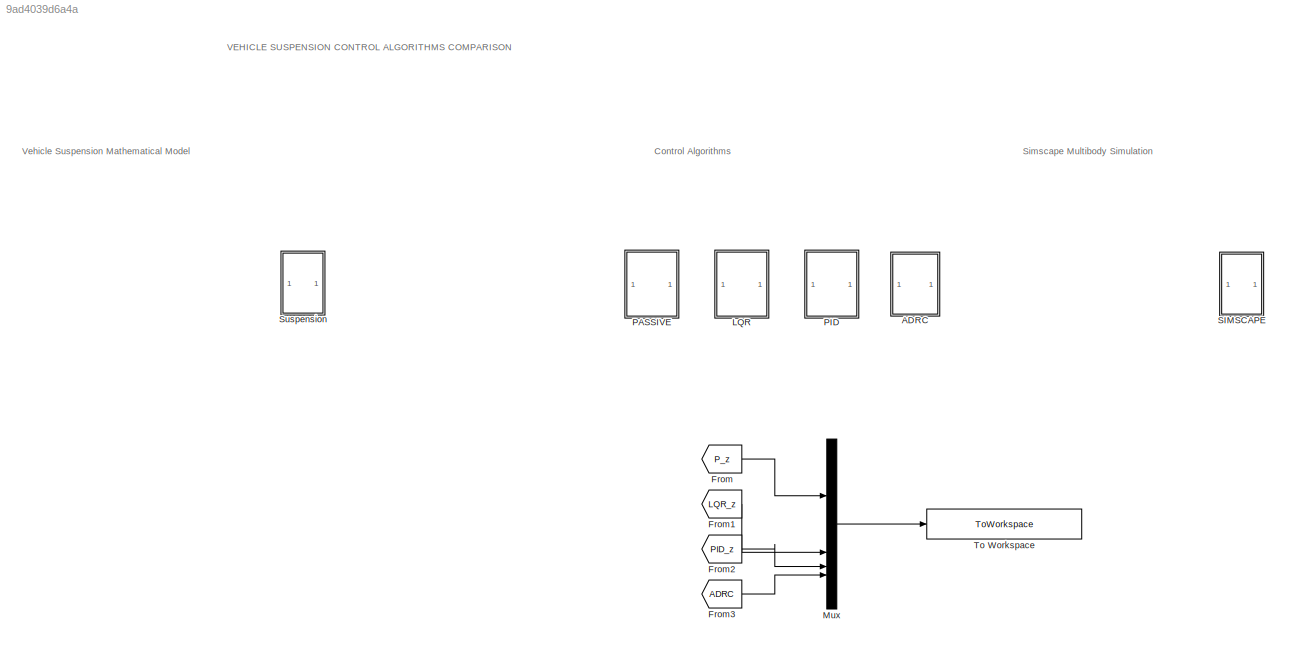
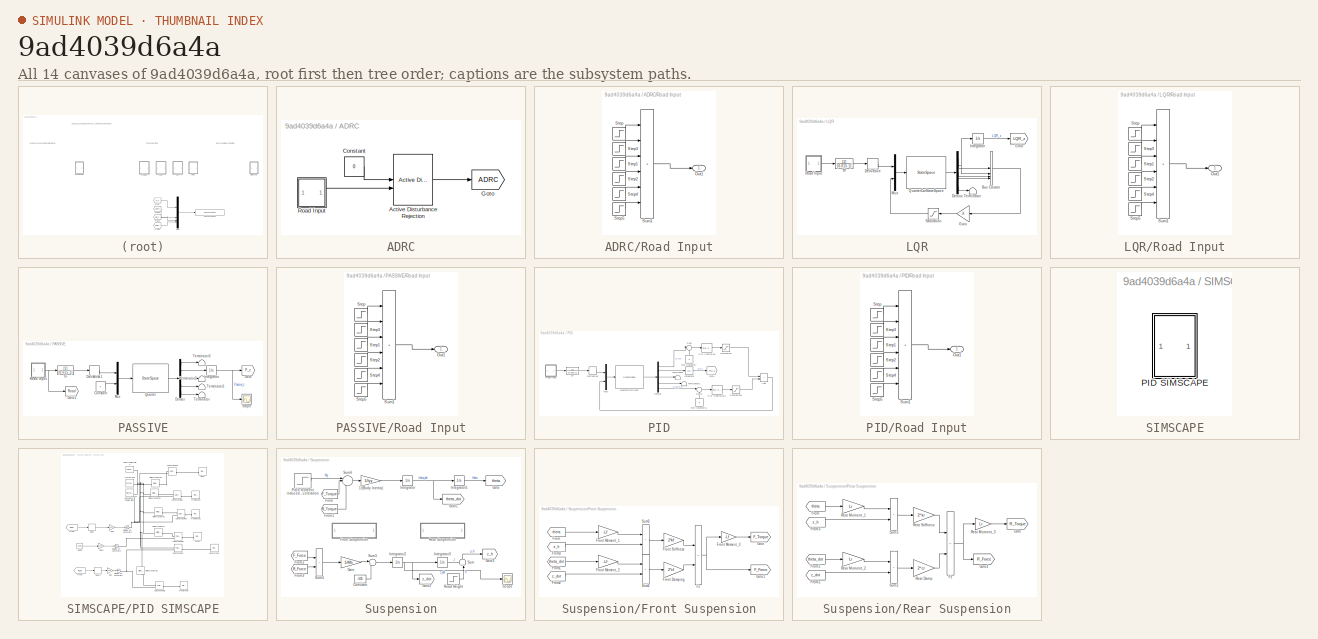
[diagram: thumbnail index - all 14 canvases of the model, root first then tree order]
MODEL slx_9ad4039d6a4a
KIND model
CONFIG AbsTol = auto
CONFIG EnableMultiTasking = off
CONFIG FixedStep = 1e-3
CONFIG MaxStep = auto
CONFIG MinStep = auto
CONFIG RelTol = 1e-3
CONFIG SampleTimeConstraint = Unconstrained
CONFIG SolverName = FixedStepAuto
CONFIG StartTime = 0.0
CONFIG StopTime = 30
WORKSPACE source: mxarray member
WORKSPACE A = [0 -444.444444444 0 2418.60465116 1 -26.3931623932 0 143.627906977 0 0 0 -9302.3255814 ... (16 elements, 4x4)]
WORKSPACE A_eso = [0 0 0 1 0 0 0 1 0]
WORKSPACE B = [0 0 -1 0 0 0.0042735042735 0 -0.0232558139535]
WORKSPACE B_eso_th = [0 333.333333333 0]
WORKSPACE B_eso_y = [0 0.8 0]
WORKSPACE C = [1 0 0 0 -444.444444444 0 1 0 0 -26.3931623932 0 0 ... (20 elements, 5x4)]
WORKSPACE C_eso = [1 0 0]
WORKSPACE D = [0 0 0 0 0 0 0 0 0 0.0042735042735]
WORKSPACE I = 0.003
WORKSPACE Ic_xnl = [0 0 0 0 0.349065850399 0]
WORKSPACE Iyy = 2100
WORKSPACE K = [40277.510375 6943.43713521 -89611.1366666 302.327568335]
WORKSPACE Kd = 5239.23468894
WORKSPACE Kd_2 = 0
WORKSPACE Kd_th = 7.53982236862
WORKSPACE Kd_y = 7.53982236862
WORKSPACE Ki = 3819451.68393
WORKSPACE Ki_2 = 12673.3447819
WORKSPACE Kp = 319533.641021
WORKSPACE Kp_2 = 160
WORKSPACE Kp_th = 14.2122303376
WORKSPACE Kp_y = 14.2122303376
WORKSPACE L = 0.35
WORKSPACE L_eso_th = [56.5486677646 1065.91727532 6697.35576294]
WORKSPACE L_eso_y = [56.5486677646 1065.91727532 6697.35576294]
WORKSPACE Lf = 0.9
WORKSPACE Lr = 1.2
WORKSPACE Mb = 1200
WORKSPACE Q = [10000000000 0 0 0 0 100000000 0 0 0 0 1 0 ... (16 elements, 4x4)]
WORKSPACE R = 1
WORKSPACE T_f = 5
WORKSPACE b_th = 333.333333333
WORKSPACE b_y = 0.8
WORKSPACE bs = 6176
WORKSPACE bus = 0
WORKSPACE cf = 2000
WORKSPACE cr = 2000
WORKSPACE elapsed_time_simulation = 14.1875694
WORKSPACE fc_th = 0.6
WORKSPACE fc_y = 0.6
WORKSPACE g = 9.81
WORKSPACE h = 0.2
WORKSPACE i = 125
WORKSPACE kf = 28000
WORKSPACE kr = 21000
WORKSPACE ks = 104000
WORKSPACE kus = 400000
WORKSPACE m = 1
WORKSPACE model_sim: Simulink.SimulationOutput (value not decoded)
WORKSPACE ms = 234
WORKSPACE mus = 43
WORKSPACE pid: object (value not decoded)
WORKSPACE pid_2: object (value not decoded)
WORKSPACE qcar: object (value not decoded)
WORKSPACE road = 3
WORKSPACE road_profile: timeseries (value not decoded)
WORKSPACE road_surface: timeseries (value not decoded)
WORKSPACE sim_time = [0.01 0.05 0.09 0.13 0.17 0.21 0.25 0.29 0.33 0.37 0.41 0.45 ... (125 elements, 1x125)]
WORKSPACE sprung_mass_a: object (value not decoded)
WORKSPACE sprung_mass_motion: object (value not decoded)
WORKSPACE state_LQR: object (value not decoded)
WORKSPACE state_PID: object (value not decoded)
WORKSPACE state_passive: object (value not decoded)
WORKSPACE wc_th = 3.76991118431
WORKSPACE wc_y = 3.76991118431
WORKSPACE wo_th = 18.8495559215
WORKSPACE wo_y = 18.8495559215
BLOCK [SubSystem] ADRC
BLOCK [Reference] ADRC/Active Disturbance Rejection  REF=slctrlblks/Active Disturbance Rejection Control
  SourceBlock = slctrlblks/Active Disturbance Rejection Control
  SourceType = Active Disturbance Rejection Control (ADRC)
BLOCK [Constant] ADRC/Constant
  Value = 0
BLOCK [Goto] ADRC/Goto
  GotoTag = ADRC
  TagVisibility = global
BLOCK [SubSystem] ADRC/Road Input
BLOCK [Outport] ADRC/Road Input/Out1
BLOCK [Step] ADRC/Road Input/Step
  After = 0.08
  SampleTime = 0
  Time = 5
BLOCK [Step] ADRC/Road Input/Step1
  After = 0.06
  SampleTime = 0
  Time = 10
BLOCK [Step] ADRC/Road Input/Step2
  After = -0.06
  SampleTime = 0
  Time = 10.1
BLOCK [Step] ADRC/Road Input/Step3
  After = -0.08
  SampleTime = 0
  Time = 5.1
BLOCK [Step] ADRC/Road Input/Step4
  After = 0.12
  SampleTime = 0
  Time = 15
BLOCK [Step] ADRC/Road Input/Step5
  After = -0.12
  SampleTime = 0
  Time = 15.1
BLOCK [Sum] ADRC/Road Input/Sum1
  IconShape = rectangular
  Inputs = |++++++
BLOCK [From] From
  GotoTag = P_z
  TagVisibility = global
BLOCK [From] From1
  GotoTag = LQR_z
  TagVisibility = global
BLOCK [From] From2
  GotoTag = PID_z
  TagVisibility = global
BLOCK [From] From3
  GotoTag = ADRC
  TagVisibility = global
BLOCK [SubSystem] LQR
BLOCK [BusCreator] LQR/Bus Creator
  DisplayOption = bar
  InheritFromInputs = on
  Inputs = 4
BLOCK [Demux] LQR/Demux
  Outputs = 5
BLOCK [Derivative] LQR/Derivative
BLOCK [Gain] LQR/Gain
  Gain = -K
  Multiplication = Matrix(K*u)
  NameLocation = top
BLOCK [Goto] LQR/Goto
  GotoTag = LQR_z
  TagVisibility = global
BLOCK [Integrator] LQR/Integrator
BLOCK [Mux] LQR/Mux
  DisplayOption = bar
  Inputs = 2
BLOCK [StateSpace] LQR/QuarterCarStateSpace
  A = A
  B = B
  C = C
  D = D
  InitialCondition = 0
BLOCK [SubSystem] LQR/Road Input
BLOCK [Outport] LQR/Road Input/Out1
BLOCK [Step] LQR/Road Input/Step
  After = 0.08
  SampleTime = 0
  Time = 5
BLOCK [Step] LQR/Road Input/Step1
  After = 0.06
  SampleTime = 0
  Time = 10
BLOCK [Step] LQR/Road Input/Step2
  After = -0.06
  SampleTime = 0
  Time = 10.1
BLOCK [Step] LQR/Road Input/Step3
  After = -0.08
  SampleTime = 0
  Time = 5.1
BLOCK [Step] LQR/Road Input/Step4
  After = 0.12
  SampleTime = 0
  Time = 15
BLOCK [Step] LQR/Road Input/Step5
  After = -0.12
  SampleTime = 0
  Time = 15.1
BLOCK [Sum] LQR/Road Input/Sum1
  IconShape = rectangular
  Inputs = |++++++
BLOCK [Saturate] LQR/Saturation
  LowerLimit = -46730
  NameLocation = top
  UpperLimit = 46730
BLOCK [TransferFcn] LQR/TF
  Denominator = [0.015 1]
BLOCK [Terminator] LQR/Terminator
BLOCK [Mux] Mux
  DisplayOption = bar
BLOCK [SubSystem] PASSIVE
BLOCK [Constant] PASSIVE/Constant
  Value = 0
BLOCK [Demux] PASSIVE/Demux
  Outputs = 5
BLOCK [Derivative] PASSIVE/Derivative1
BLOCK [Goto] PASSIVE/Goto
  GotoTag = P_z
  TagVisibility = global
BLOCK [Goto] PASSIVE/Goto1
  GotoTag = Road
  TagVisibility = global
BLOCK [Integrator] PASSIVE/Integrator
BLOCK [Mux] PASSIVE/Mux
  DisplayOption = bar
  Inputs = 2
BLOCK [StateSpace] PASSIVE/Quarter
  A = A
  B = B
  C = C
  D = D
  InitialCondition = 0
BLOCK [SubSystem] PASSIVE/Road Input
BLOCK [Outport] PASSIVE/Road Input/Out1
BLOCK [Step] PASSIVE/Road Input/Step
  After = 0.08
  SampleTime = 0
  Time = 5
BLOCK [Step] PASSIVE/Road Input/Step1
  After = 0.06
  SampleTime = 0
  Time = 10
BLOCK [Step] PASSIVE/Road Input/Step2
  After = -0.06
  SampleTime = 0
  Time = 10.1
BLOCK [Step] PASSIVE/Road Input/Step3
  After = -0.08
  SampleTime = 0
  Time = 5.1
BLOCK [Step] PASSIVE/Road Input/Step4
  After = 0.12
  SampleTime = 0
  Time = 15
BLOCK [Step] PASSIVE/Road Input/Step5
  After = -0.12
  SampleTime = 0
  Time = 15.1
BLOCK [Sum] PASSIVE/Road Input/Sum1
  IconShape = rectangular
  Inputs = |++++++
BLOCK [Scope] PASSIVE/Scope
  Floating = off
  NumInputPorts = 1
  ScopeSpecificationString = Simulink.scopes.TimeScopeBlockCfg('CurrentConfiguration', extmgr.ConfigurationSet(extmgr.Configuration('Core','General UI',true),extmgr.Configuration('Core','Source UI',true),extmgr.Configuration('Sources','WiredSimulink',true,'DataLoggingVariableName','ScopeData1'),extmgr.Configuration('Visuals','Time Domain',true,'SerializedDisplays',{struct('MinYLimReal','-0.07903','MaxYLimReal','0.19274','YLab...<+1394ch>
BLOCK [TransferFcn] PASSIVE/TF
  Denominator = [0.015 1]
BLOCK [Terminator] PASSIVE/Terminator
BLOCK [Terminator] PASSIVE/Terminator1
BLOCK [Terminator] PASSIVE/Terminator2
BLOCK [Terminator] PASSIVE/Terminator3
BLOCK [SubSystem] PID
BLOCK [Sum] PID/Add
  IconShape = rectangular
BLOCK [Demux] PID/Demux
  Outputs = 5
BLOCK [Derivative] PID/Derivative
BLOCK [Goto] PID/Goto
  GotoTag = PID_z
  TagVisibility = global
BLOCK [Integrator] PID/Integrator
BLOCK [Mux] PID/Mux
  DisplayOption = bar
  Inputs = 2
BLOCK [Reference] PID/PID Controller  REF=slpidlib/PID Controller
  LibrarySourceBlock = simulink/Continuous/PID Controller
  SourceBlock = slpidlib/PID Controller
  SourceType = PID 1dof
BLOCK [Reference] PID/PID Controller1  REF=slpidlib/PID Controller
  LibrarySourceBlock = simulink/Continuous/PID Controller
  SourceBlock = slpidlib/PID Controller
  SourceType = PID 1dof
BLOCK [StateSpace] PID/QuarterCarState
  A = A
  B = B
  C = C
  D = D
  InitialCondition = 0
BLOCK [Constant] PID/Ref trajectory
  NameLocation = right
  Value = 0
BLOCK [Constant] PID/Ref trajectory1
  NameLocation = right
  Value = 0
BLOCK [SubSystem] PID/Road Input
BLOCK [Outport] PID/Road Input/Out1
BLOCK [Step] PID/Road Input/Step
  After = 0.08
  SampleTime = 0
  Time = 5
BLOCK [Step] PID/Road Input/Step1
  After = 0.06
  SampleTime = 0
  Time = 10
BLOCK [Step] PID/Road Input/Step2
  After = -0.06
  SampleTime = 0
  Time = 10.1
BLOCK [Step] PID/Road Input/Step3
  After = -0.08
  SampleTime = 0
  Time = 5.1
BLOCK [Step] PID/Road Input/Step4
  After = 0.12
  SampleTime = 0
  Time = 15
BLOCK [Step] PID/Road Input/Step5
  After = -0.12
  SampleTime = 0
  Time = 15.1
BLOCK [Sum] PID/Road Input/Sum1
  IconShape = rectangular
  Inputs = |++++++
BLOCK [Saturate] PID/Saturation
  LowerLimit = -46730
  UpperLimit = 46730
BLOCK [Saturate] PID/Saturation1
  LowerLimit = -46730
  UpperLimit = 46730
BLOCK [Sum] PID/Sum
  Inputs = |-+
BLOCK [Sum] PID/Sum1
  Inputs = |-+
BLOCK [TransferFcn] PID/TF
  Denominator = [0.015 1]
BLOCK [Terminator] PID/Terminator
BLOCK [Terminator] PID/Terminator1
BLOCK [SubSystem] SIMSCAPE
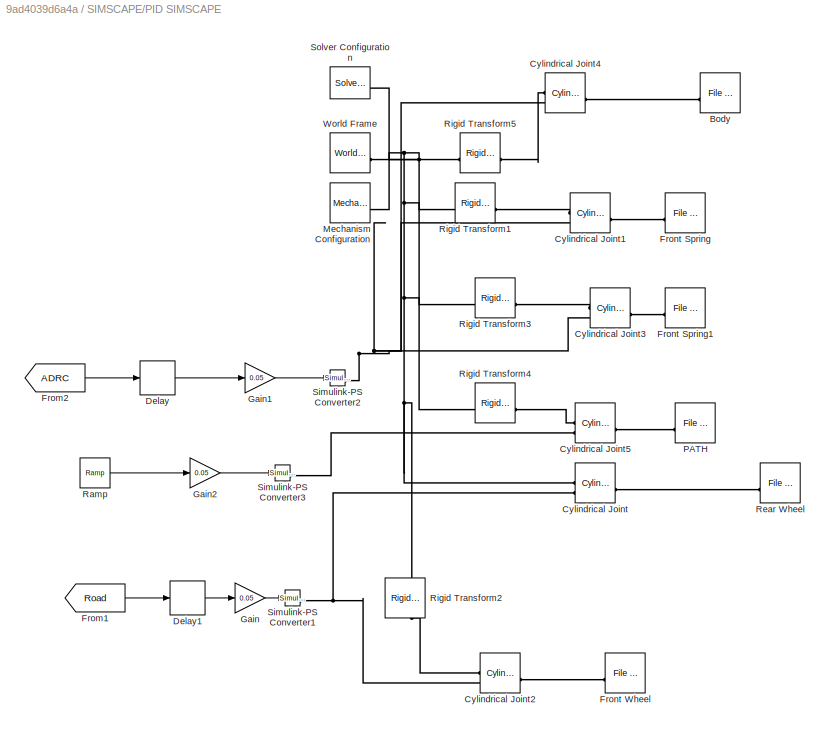
BLOCK [SubSystem] SIMSCAPE/PID SIMSCAPE
BLOCK [Reference] SIMSCAPE/PID SIMSCAPE/Body  REF=sm_lib/Body Elements/File Solid
  NameLocation = top
  SourceBlock = sm_lib/Body Elements/File Solid
  SourceType = File Solid
BLOCK [Reference] SIMSCAPE/PID SIMSCAPE/Cylindrical Joint  REF=sm_lib/Joints/Cylindrical
Joint
  SourceBlock = sm_lib/Joints/Cylindrical\nJoint
  SourceType = Cylindrical\nJoint
BLOCK [Reference] SIMSCAPE/PID SIMSCAPE/Cylindrical Joint1  REF=sm_lib/Joints/Cylindrical
Joint
  SourceBlock = sm_lib/Joints/Cylindrical\nJoint
  SourceType = Cylindrical\nJoint
BLOCK [Reference] SIMSCAPE/PID SIMSCAPE/Cylindrical Joint2  REF=sm_lib/Joints/Cylindrical
Joint
  SourceBlock = sm_lib/Joints/Cylindrical\nJoint
  SourceType = Cylindrical\nJoint
BLOCK [Reference] SIMSCAPE/PID SIMSCAPE/Cylindrical Joint3  REF=sm_lib/Joints/Cylindrical
Joint
  SourceBlock = sm_lib/Joints/Cylindrical\nJoint
  SourceType = Cylindrical\nJoint
BLOCK [Reference] SIMSCAPE/PID SIMSCAPE/Cylindrical Joint4  REF=sm_lib/Joints/Cylindrical
Joint
  SourceBlock = sm_lib/Joints/Cylindrical\nJoint
  SourceType = Cylindrical\nJoint
BLOCK [Reference] SIMSCAPE/PID SIMSCAPE/Cylindrical Joint5  REF=sm_lib/Joints/Cylindrical
Joint
  SourceBlock = sm_lib/Joints/Cylindrical\nJoint
  SourceType = Cylindrical\nJoint
BLOCK [Delay] SIMSCAPE/PID SIMSCAPE/Delay
  InputPortMap = u0
BLOCK [Delay] SIMSCAPE/PID SIMSCAPE/Delay1
  InputPortMap = u0
BLOCK [From] SIMSCAPE/PID SIMSCAPE/From1
  GotoTag = Road
  TagVisibility = global
BLOCK [From] SIMSCAPE/PID SIMSCAPE/From2
  GotoTag = ADRC
  TagVisibility = global
BLOCK [Reference] SIMSCAPE/PID SIMSCAPE/Front Spring  REF=sm_lib/Body Elements/File Solid
  NameLocation = top
  SourceBlock = sm_lib/Body Elements/File Solid
  SourceType = File Solid
BLOCK [Reference] SIMSCAPE/PID SIMSCAPE/Front Spring1  REF=sm_lib/Body Elements/File Solid
  NameLocation = top
  SourceBlock = sm_lib/Body Elements/File Solid
  SourceType = File Solid
BLOCK [Reference] SIMSCAPE/PID SIMSCAPE/Front Wheel  REF=sm_lib/Body Elements/File Solid
  NameLocation = top
  SourceBlock = sm_lib/Body Elements/File Solid
  SourceType = File Solid
BLOCK [Gain] SIMSCAPE/PID SIMSCAPE/Gain
  Gain = 0.05
BLOCK [Gain] SIMSCAPE/PID SIMSCAPE/Gain1
  Gain = 0.05
BLOCK [Gain] SIMSCAPE/PID SIMSCAPE/Gain2
  Gain = 0.05
BLOCK [Reference] SIMSCAPE/PID SIMSCAPE/Mechanism Configuration  REF=sm_lib/Utilities/Mechanism
Configuration
  SourceBlock = sm_lib/Utilities/Mechanism\nConfiguration
  SourceType = Mechanism\nConfiguration
BLOCK [Reference] SIMSCAPE/PID SIMSCAPE/PATH  REF=sm_lib/Body Elements/File Solid
  NameLocation = top
  SourceBlock = sm_lib/Body Elements/File Solid
  SourceType = File Solid
BLOCK [Reference] SIMSCAPE/PID SIMSCAPE/Ramp  REF=simulink/Sources/Ramp
  SourceBlock = simulink/Sources/Ramp
  SourceType = Ramp
BLOCK [Reference] SIMSCAPE/PID SIMSCAPE/Rear Wheel  REF=sm_lib/Body Elements/File Solid
  NameLocation = top
  SourceBlock = sm_lib/Body Elements/File Solid
  SourceType = File Solid
BLOCK [Reference] SIMSCAPE/PID SIMSCAPE/Rigid Transform1  REF=sm_lib/Frames and
Transforms/Rigid
Transform
  SourceBlock = sm_lib/Frames and\nTransforms/Rigid\nTransform
  SourceType = Rigid\nTransform
BLOCK [Reference] SIMSCAPE/PID SIMSCAPE/Rigid Transform2  REF=sm_lib/Frames and
Transforms/Rigid
Transform
  NameLocation = left
  SourceBlock = sm_lib/Frames and\nTransforms/Rigid\nTransform
  SourceType = Rigid\nTransform
BLOCK [Reference] SIMSCAPE/PID SIMSCAPE/Rigid Transform3  REF=sm_lib/Frames and
Transforms/Rigid
Transform
  SourceBlock = sm_lib/Frames and\nTransforms/Rigid\nTransform
  SourceType = Rigid\nTransform
BLOCK [Reference] SIMSCAPE/PID SIMSCAPE/Rigid Transform4  REF=sm_lib/Frames and
Transforms/Rigid
Transform
  SourceBlock = sm_lib/Frames and\nTransforms/Rigid\nTransform
  SourceType = Rigid\nTransform
BLOCK [Reference] SIMSCAPE/PID SIMSCAPE/Rigid Transform5  REF=sm_lib/Frames and
Transforms/Rigid
Transform
  SourceBlock = sm_lib/Frames and\nTransforms/Rigid\nTransform
  SourceType = Rigid\nTransform
BLOCK [Reference] SIMSCAPE/PID SIMSCAPE/Simulink-PS Converter1  REF=nesl_utility/Simulink-PS
Converter
  SourceBlock = nesl_utility/Simulink-PS\nConverter
  SourceType = Simulink-PS\nConverter
BLOCK [Reference] SIMSCAPE/PID SIMSCAPE/Simulink-PS Converter2  REF=nesl_utility/Simulink-PS
Converter
  SourceBlock = nesl_utility/Simulink-PS\nConverter
  SourceType = Simulink-PS\nConverter
BLOCK [Reference] SIMSCAPE/PID SIMSCAPE/Simulink-PS Converter3  REF=nesl_utility/Simulink-PS
Converter
  SourceBlock = nesl_utility/Simulink-PS\nConverter
  SourceType = Simulink-PS\nConverter
BLOCK [Reference] SIMSCAPE/PID SIMSCAPE/Solver Configuration  REF=nesl_utility/Solver
Configuration
  SourceBlock = nesl_utility/Solver\nConfiguration
  SourceType = Solver\nConfiguration
BLOCK [Reference] SIMSCAPE/PID SIMSCAPE/World Frame  REF=sm_lib/Frames and
Transforms/World Frame
  SourceBlock = sm_lib/Frames and\nTransforms/World Frame
  SourceType = World Frame
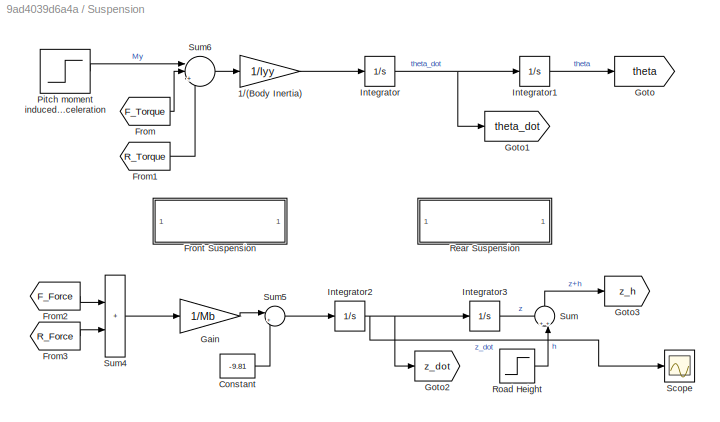
BLOCK [SubSystem] Suspension
BLOCK [Gain] Suspension/1//(Body Inertia)
  Gain = 1/Iyy
  OutDataTypeStr = Inherit: Same as input
  ParamDataTypeStr = Inherit: Same as input
  SaturateOnIntegerOverflow = on
BLOCK [Constant] Suspension/Constant
  Value = -9.81
BLOCK [From] Suspension/From
  GotoTag = F_Torque
  TagVisibility = global
BLOCK [From] Suspension/From1
  GotoTag = R_Torque
  TagVisibility = global
BLOCK [From] Suspension/From2
  GotoTag = F_Force
  TagVisibility = global
BLOCK [From] Suspension/From3
  GotoTag = R_Force
  TagVisibility = global
BLOCK [SubSystem] Suspension/Front Suspension
BLOCK [From] Suspension/Front Suspension/From
  GotoTag = theta
  TagVisibility = global
BLOCK [From] Suspension/Front Suspension/From1
  GotoTag = theta_dot
  TagVisibility = global
BLOCK [From] Suspension/Front Suspension/From2
  GotoTag = z_dot
  TagVisibility = global
BLOCK [From] Suspension/Front Suspension/From3
  GotoTag = z_h
  TagVisibility = global
BLOCK [Gain] Suspension/Front Suspension/Front Damping
  Gain = 2*cf
  OutDataTypeStr = Inherit: Same as input
  ParamDataTypeStr = Inherit: Same as input
  SaturateOnIntegerOverflow = on
BLOCK [Gain] Suspension/Front Suspension/Front Moment_1
  Gain = -Lf
  OutDataTypeStr = Inherit: Same as input
  ParamDataTypeStr = Inherit: Same as input
  SaturateOnIntegerOverflow = on
BLOCK [Gain] Suspension/Front Suspension/Front Moment_2
  Gain = -Lf
  OutDataTypeStr = Inherit: Same as input
  ParamDataTypeStr = Inherit: Same as input
  SaturateOnIntegerOverflow = on
BLOCK [Gain] Suspension/Front Suspension/Front Moment_3
  Gain = -Lf
  OutDataTypeStr = Inherit: Same as input
  ParamDataTypeStr = Inherit: Same as input
  SaturateOnIntegerOverflow = on
BLOCK [Gain] Suspension/Front Suspension/Front Stiffness
  Gain = 2*kf
  OutDataTypeStr = Inherit: Same as input
  ParamDataTypeStr = Inherit: Same as input
  SaturateOnIntegerOverflow = on
BLOCK [Sum] Suspension/Front Suspension/Fz
  IconShape = rectangular
  InputSameDT = on
  Inputs = --
  OutDataTypeStr = Inherit: Same as first input
  SaturateOnIntegerOverflow = on
BLOCK [Goto] Suspension/Front Suspension/Goto
  GotoTag = F_Torque
  TagVisibility = global
BLOCK [Goto] Suspension/Front Suspension/Goto1
  GotoTag = F_Force
  TagVisibility = global
BLOCK [Sum] Suspension/Front Suspension/Sum2
  IconShape = rectangular
  InputSameDT = on
  OutDataTypeStr = Inherit: Same as first input
  SaturateOnIntegerOverflow = on
BLOCK [Sum] Suspension/Front Suspension/Sum3
  IconShape = rectangular
  InputSameDT = on
  OutDataTypeStr = Inherit: Same as first input
  SaturateOnIntegerOverflow = on
BLOCK [Gain] Suspension/Gain
  Gain = 1/Mb
  OutDataTypeStr = Inherit: Same as input
  ParamDataTypeStr = Inherit: Same as input
  SaturateOnIntegerOverflow = on
BLOCK [Goto] Suspension/Goto
  GotoTag = theta
  TagVisibility = global
BLOCK [Goto] Suspension/Goto1
  GotoTag = theta_dot
  TagVisibility = global
BLOCK [Goto] Suspension/Goto2
  GotoTag = z_dot
  TagVisibility = global
BLOCK [Goto] Suspension/Goto3
  GotoTag = z_h
  TagVisibility = global
BLOCK [Integrator] Suspension/Integrator
BLOCK [Integrator] Suspension/Integrator1
BLOCK [Integrator] Suspension/Integrator2
BLOCK [Integrator] Suspension/Integrator3
  InitialCondition = -0.12
BLOCK [Step] Suspension/Pitch moment induced by vehicle acceleration
  After = 100
  SampleTime = 0
  Time = 3
BLOCK [SubSystem] Suspension/Rear Suspension
BLOCK [From] Suspension/Rear Suspension/From
  GotoTag = theta
  TagVisibility = global
BLOCK [From] Suspension/Rear Suspension/From1
  GotoTag = theta_dot
  TagVisibility = global
BLOCK [From] Suspension/Rear Suspension/From2
  GotoTag = z_dot
  TagVisibility = global
BLOCK [From] Suspension/Rear Suspension/From3
  GotoTag = z_h
  TagVisibility = global
BLOCK [Sum] Suspension/Rear Suspension/Fz
  IconShape = rectangular
  InputSameDT = on
  Inputs = --
  OutDataTypeStr = Inherit: Same as first input
  SaturateOnIntegerOverflow = on
BLOCK [Goto] Suspension/Rear Suspension/Goto
  GotoTag = R_Torque
  TagVisibility = global
BLOCK [Goto] Suspension/Rear Suspension/Goto1
  GotoTag = R_Force
  TagVisibility = global
BLOCK [Gain] Suspension/Rear Suspension/Rear Damp
  Gain = 2*cr
  OutDataTypeStr = Inherit: Same as input
  ParamDataTypeStr = Inherit: Same as input
  SaturateOnIntegerOverflow = on
BLOCK [Gain] Suspension/Rear Suspension/Rear Moment_1
  Gain = Lr
  OutDataTypeStr = Inherit: Same as input
  ParamDataTypeStr = Inherit: Same as input
  SaturateOnIntegerOverflow = on
BLOCK [Gain] Suspension/Rear Suspension/Rear Moment_2
  Gain = Lr
  OutDataTypeStr = Inherit: Same as input
  ParamDataTypeStr = Inherit: Same as input
  SaturateOnIntegerOverflow = on
BLOCK [Gain] Suspension/Rear Suspension/Rear Moment_3
  Gain = Lr
  OutDataTypeStr = Inherit: Same as input
  ParamDataTypeStr = Inherit: Same as input
  SaturateOnIntegerOverflow = on
BLOCK [Gain] Suspension/Rear Suspension/Rear Stiffness
  Gain = 2*kr
  OutDataTypeStr = Inherit: Same as input
  ParamDataTypeStr = Inherit: Same as input
  SaturateOnIntegerOverflow = on
BLOCK [Sum] Suspension/Rear Suspension/Sum2
  IconShape = rectangular
  InputSameDT = on
  OutDataTypeStr = Inherit: Same as first input
  SaturateOnIntegerOverflow = on
BLOCK [Sum] Suspension/Rear Suspension/Sum3
  IconShape = rectangular
  InputSameDT = on
  OutDataTypeStr = Inherit: Same as first input
  SaturateOnIntegerOverflow = on
BLOCK [Step] Suspension/Road Height
  After = 0.01
  SampleTime = 0
  Time = 7
BLOCK [Scope] Suspension/Scope
  Floating = off
  NumInputPorts = 1
  ScopeSpecificationString = Simulink.scopes.TimeScopeBlockCfg('CurrentConfiguration', extmgr.ConfigurationSet(extmgr.Configuration('Core','General UI',true),extmgr.Configuration('Core','Source UI',true),extmgr.Configuration('Sources','WiredSimulink',true),extmgr.Configuration('Visuals','Time Domain',true,'SerializedDisplays',{struct('MinYLimReal','-0.06198','MaxYLimReal','0.02114','YLabelReal','','MinYLimMag','0.00000','MaxY...<+1380ch>
BLOCK [Sum] Suspension/Sum
  Inputs = ++|
  NameLocation = right
BLOCK [Sum] Suspension/Sum4
  IconShape = rectangular
  InputSameDT = on
  OutDataTypeStr = Inherit: Same as first input
  SaturateOnIntegerOverflow = on
BLOCK [Sum] Suspension/Sum5
  InputSameDT = on
  Inputs = |++
  OutDataTypeStr = Inherit: Same as first input
  SaturateOnIntegerOverflow = on
BLOCK [Sum] Suspension/Sum6
  InputSameDT = on
  Inputs = ||+++
  OutDataTypeStr = Inherit: Same as first input
  SaturateOnIntegerOverflow = on
BLOCK [ToWorkspace] To Workspace
  FixptAsFi = on
  MaxDataPoints = inf
  SampleTime = -1
  SaveFormat = Structure
  VariableName = sussim
ANNOTATION (root): Control Algorithms
ANNOTATION (root): Simscape Multibody Simulation
ANNOTATION (root): Vehicle Suspension Mathematical Model
ANNOTATION (root): VEHICLE SUSPENSION CONTROL ALGORITHMS COMPARISON
LINE ADRC/Active Disturbance Rejection:1 -> ADRC/Goto:1
LINE ADRC/Constant:1 -> ADRC/Active Disturbance Rejection:1
LINE ADRC/Road Input/Step1:1 -> ADRC/Road Input/Sum1:3
LINE ADRC/Road Input/Step2:1 -> ADRC/Road Input/Sum1:4
LINE ADRC/Road Input/Step3:1 -> ADRC/Road Input/Sum1:2
LINE ADRC/Road Input/Step4:1 -> ADRC/Road Input/Sum1:5
LINE ADRC/Road Input/Step5:1 -> ADRC/Road Input/Sum1:6
LINE ADRC/Road Input/Step:1 -> ADRC/Road Input/Sum1:1
LINE ADRC/Road Input/Sum1:1 -> ADRC/Road Input/Out1:1
LINE ADRC/Road Input:1 -> ADRC/Active Disturbance Rejection:2
LINE From1:1 -> Mux:2
LINE From2:1 -> Mux:3
LINE From3:1 -> Mux:4
LINE From:1 -> Mux:1
LINE LQR/Bus Creator:1 -> LQR/Gain:1
LINE LQR/Demux:1 -> LQR/Bus Creator:1
NET LQR/Demux:2 -> LQR/Bus Creator:2, LQR/Integrator:1
LINE LQR/Demux:3 -> LQR/Bus Creator:3
LINE LQR/Demux:4 -> LQR/Bus Creator:4
LINE LQR/Demux:5 -> LQR/Terminator:1
LINE LQR/Derivative:1 -> LQR/Mux:1
LINE LQR/Gain:1 -> LQR/Saturation:1
LINE LQR/Integrator:1 -> LQR/Goto:1
LINE LQR/Mux:1 -> LQR/QuarterCarStateSpace:1
LINE LQR/QuarterCarStateSpace:1 -> LQR/Demux:1
LINE LQR/Road Input/Step1:1 -> LQR/Road Input/Sum1:3
LINE LQR/Road Input/Step2:1 -> LQR/Road Input/Sum1:4
LINE LQR/Road Input/Step3:1 -> LQR/Road Input/Sum1:2
LINE LQR/Road Input/Step4:1 -> LQR/Road Input/Sum1:5
LINE LQR/Road Input/Step5:1 -> LQR/Road Input/Sum1:6
LINE LQR/Road Input/Step:1 -> LQR/Road Input/Sum1:1
LINE LQR/Road Input/Sum1:1 -> LQR/Road Input/Out1:1
LINE LQR/Road Input:1 -> LQR/TF:1
LINE LQR/Saturation:1 -> LQR/Mux:2
LINE LQR/TF:1 -> LQR/Derivative:1
LINE Mux:1 -> To Workspace:1
LINE PASSIVE/Constant:1 -> PASSIVE/Mux:2
LINE PASSIVE/Demux:1 -> PASSIVE/Terminator3:1
LINE PASSIVE/Demux:2 -> PASSIVE/Integrator:1
LINE PASSIVE/Demux:3 -> PASSIVE/Terminator2:1
LINE PASSIVE/Demux:4 -> PASSIVE/Terminator1:1
LINE PASSIVE/Demux:5 -> PASSIVE/Terminator:1
LINE PASSIVE/Derivative1:1 -> PASSIVE/Mux:1
NET PASSIVE/Integrator:1 -> PASSIVE/Goto:1, PASSIVE/Scope:1
LINE PASSIVE/Mux:1 -> PASSIVE/Quarter:1
LINE PASSIVE/Quarter:1 -> PASSIVE/Demux:1
LINE PASSIVE/Road Input/Step1:1 -> PASSIVE/Road Input/Sum1:3
LINE PASSIVE/Road Input/Step2:1 -> PASSIVE/Road Input/Sum1:4
LINE PASSIVE/Road Input/Step3:1 -> PASSIVE/Road Input/Sum1:2
LINE PASSIVE/Road Input/Step4:1 -> PASSIVE/Road Input/Sum1:5
LINE PASSIVE/Road Input/Step5:1 -> PASSIVE/Road Input/Sum1:6
LINE PASSIVE/Road Input/Step:1 -> PASSIVE/Road Input/Sum1:1
LINE PASSIVE/Road Input/Sum1:1 -> PASSIVE/Road Input/Out1:1
NET PASSIVE/Road Input:1 -> PASSIVE/Goto1:1, PASSIVE/TF:1
LINE PASSIVE/TF:1 -> PASSIVE/Derivative1:1
LINE PID/Add:1 -> PID/Mux:2
LINE PID/Demux:1 -> PID/Sum:1
LINE PID/Demux:2 -> PID/Integrator:1
LINE PID/Demux:3 -> PID/Terminator:1
LINE PID/Demux:4 -> PID/Terminator1:1
LINE PID/Demux:5 -> PID/Sum1:1
LINE PID/Derivative:1 -> PID/Mux:1
LINE PID/Integrator:1 -> PID/Goto:1
LINE PID/Mux:1 -> PID/QuarterCarState:1
LINE PID/PID Controller1:1 -> PID/Saturation1:1
LINE PID/PID Controller:1 -> PID/Saturation:1
LINE PID/QuarterCarState:1 -> PID/Demux:1
LINE PID/Ref trajectory1:1 -> PID/Sum1:2
LINE PID/Ref trajectory:1 -> PID/Sum:2
LINE PID/Road Input/Step1:1 -> PID/Road Input/Sum1:3
LINE PID/Road Input/Step2:1 -> PID/Road Input/Sum1:4
LINE PID/Road Input/Step3:1 -> PID/Road Input/Sum1:2
LINE PID/Road Input/Step4:1 -> PID/Road Input/Sum1:5
LINE PID/Road Input/Step5:1 -> PID/Road Input/Sum1:6
LINE PID/Road Input/Step:1 -> PID/Road Input/Sum1:1
LINE PID/Road Input/Sum1:1 -> PID/Road Input/Out1:1
LINE PID/Road Input:1 -> PID/TF:1
LINE PID/Saturation1:1 -> PID/Add:2
LINE PID/Saturation:1 -> PID/Add:1
LINE PID/Sum1:1 -> PID/PID Controller1:1
LINE PID/Sum:1 -> PID/PID Controller:1
LINE PID/TF:1 -> PID/Derivative:1
LINE SIMSCAPE/PID SIMSCAPE/Delay1:1 -> SIMSCAPE/PID SIMSCAPE/Gain:1
LINE SIMSCAPE/PID SIMSCAPE/Delay:1 -> SIMSCAPE/PID SIMSCAPE/Gain1:1
LINE SIMSCAPE/PID SIMSCAPE/From1:1 -> SIMSCAPE/PID SIMSCAPE/Delay1:1
LINE SIMSCAPE/PID SIMSCAPE/From2:1 -> SIMSCAPE/PID SIMSCAPE/Delay:1
LINE SIMSCAPE/PID SIMSCAPE/Gain1:1 -> SIMSCAPE/PID SIMSCAPE/Simulink-PS Converter2:1
LINE SIMSCAPE/PID SIMSCAPE/Gain2:1 -> SIMSCAPE/PID SIMSCAPE/Simulink-PS Converter3:1
LINE SIMSCAPE/PID SIMSCAPE/Gain:1 -> SIMSCAPE/PID SIMSCAPE/Simulink-PS Converter1:1
LINE SIMSCAPE/PID SIMSCAPE/Ramp:1 -> SIMSCAPE/PID SIMSCAPE/Gain2:1
LINE Suspension/1//(Body Inertia):1 -> Suspension/Integrator:1
LINE Suspension/Constant:1 -> Suspension/Sum5:2
LINE Suspension/From1:1 -> Suspension/Sum6:3
LINE Suspension/From2:1 -> Suspension/Sum4:1
LINE Suspension/From3:1 -> Suspension/Sum4:2
LINE Suspension/From:1 -> Suspension/Sum6:2
LINE Suspension/Front Suspension/From1:1 -> Suspension/Front Suspension/Front Moment_2:1
LINE Suspension/Front Suspension/From2:1 -> Suspension/Front Suspension/Sum2:2
LINE Suspension/Front Suspension/From3:1 -> Suspension/Front Suspension/Sum3:2
LINE Suspension/Front Suspension/From:1 -> Suspension/Front Suspension/Front Moment_1:1
LINE Suspension/Front Suspension/Front Damping:1 -> Suspension/Front Suspension/Fz:2
LINE Suspension/Front Suspension/Front Moment_1:1 -> Suspension/Front Suspension/Sum3:1
LINE Suspension/Front Suspension/Front Moment_2:1 -> Suspension/Front Suspension/Sum2:1
LINE Suspension/Front Suspension/Front Moment_3:1 -> Suspension/Front Suspension/Goto:1
LINE Suspension/Front Suspension/Front Stiffness:1 -> Suspension/Front Suspension/Fz:1
NET Suspension/Front Suspension/Fz:1 -> Suspension/Front Suspension/Front Moment_3:1, Suspension/Front Suspension/Goto1:1
LINE Suspension/Front Suspension/Sum2:1 -> Suspension/Front Suspension/Front Damping:1
LINE Suspension/Front Suspension/Sum3:1 -> Suspension/Front Suspension/Front Stiffness:1
LINE Suspension/Gain:1 -> Suspension/Sum5:1
LINE Suspension/Integrator1:1 -> Suspension/Goto:1
NET Suspension/Integrator2:1 -> Suspension/Goto2:1, Suspension/Integrator3:1, Suspension/Scope:1
LINE Suspension/Integrator3:1 -> Suspension/Sum:1
NET Suspension/Integrator:1 -> Suspension/Goto1:1, Suspension/Integrator1:1
LINE Suspension/Pitch moment induced by vehicle acceleration:1 -> Suspension/Sum6:1
LINE Suspension/Rear Suspension/From1:1 -> Suspension/Rear Suspension/Rear Moment_2:1
LINE Suspension/Rear Suspension/From2:1 -> Suspension/Rear Suspension/Sum2:2
LINE Suspension/Rear Suspension/From3:1 -> Suspension/Rear Suspension/Sum3:2
LINE Suspension/Rear Suspension/From:1 -> Suspension/Rear Suspension/Rear Moment_1:1
NET Suspension/Rear Suspension/Fz:1 -> Suspension/Rear Suspension/Goto1:1, Suspension/Rear Suspension/Rear Moment_3:1
LINE Suspension/Rear Suspension/Rear Damp:1 -> Suspension/Rear Suspension/Fz:2
LINE Suspension/Rear Suspension/Rear Moment_1:1 -> Suspension/Rear Suspension/Sum3:1
LINE Suspension/Rear Suspension/Rear Moment_2:1 -> Suspension/Rear Suspension/Sum2:1
LINE Suspension/Rear Suspension/Rear Moment_3:1 -> Suspension/Rear Suspension/Goto:1
LINE Suspension/Rear Suspension/Rear Stiffness:1 -> Suspension/Rear Suspension/Fz:1
LINE Suspension/Rear Suspension/Sum2:1 -> Suspension/Rear Suspension/Rear Damp:1
LINE Suspension/Rear Suspension/Sum3:1 -> Suspension/Rear Suspension/Rear Stiffness:1
LINE Suspension/Road Height:1 -> Suspension/Sum:2
LINE Suspension/Sum4:1 -> Suspension/Gain:1
LINE Suspension/Sum5:1 -> Suspension/Integrator2:1
LINE Suspension/Sum6:1 -> Suspension/1//(Body Inertia):1
LINE Suspension/Sum:1 -> Suspension/Goto3:1
PLINE SIMSCAPE/PID SIMSCAPE/Body:RConn1 -- SIMSCAPE/PID SIMSCAPE/Cylindrical Joint4:RConn1
PLINE SIMSCAPE/PID SIMSCAPE/Cylindrical Joint1:LConn1 -- SIMSCAPE/PID SIMSCAPE/Rigid Transform1:RConn1
PNET net1: SIMSCAPE/PID SIMSCAPE/Cylindrical Joint1:LConn2 -- SIMSCAPE/PID SIMSCAPE/Cylindrical Joint3:LConn2 -- SIMSCAPE/PID SIMSCAPE/Cylindrical Joint4:LConn2 -- SIMSCAPE/PID SIMSCAPE/Simulink-PS Converter2:RConn1
PLINE SIMSCAPE/PID SIMSCAPE/Cylindrical Joint1:RConn1 -- SIMSCAPE/PID SIMSCAPE/Front Spring:RConn1
PLINE SIMSCAPE/PID SIMSCAPE/Cylindrical Joint2:LConn1 -- SIMSCAPE/PID SIMSCAPE/Rigid Transform2:RConn1
PNET net2: SIMSCAPE/PID SIMSCAPE/Cylindrical Joint2:LConn2 -- SIMSCAPE/PID SIMSCAPE/Cylindrical Joint:LConn2 -- SIMSCAPE/PID SIMSCAPE/Simulink-PS Converter1:RConn1
PLINE SIMSCAPE/PID SIMSCAPE/Cylindrical Joint2:RConn1 -- SIMSCAPE/PID SIMSCAPE/Front Wheel:RConn1
PLINE SIMSCAPE/PID SIMSCAPE/Cylindrical Joint3:LConn1 -- SIMSCAPE/PID SIMSCAPE/Rigid Transform3:RConn1
PLINE SIMSCAPE/PID SIMSCAPE/Cylindrical Joint3:RConn1 -- SIMSCAPE/PID SIMSCAPE/Front Spring1:RConn1
PLINE SIMSCAPE/PID SIMSCAPE/Cylindrical Joint4:LConn1 -- SIMSCAPE/PID SIMSCAPE/Rigid Transform5:RConn1
PLINE SIMSCAPE/PID SIMSCAPE/Cylindrical Joint5:LConn1 -- SIMSCAPE/PID SIMSCAPE/Rigid Transform4:RConn1
PLINE SIMSCAPE/PID SIMSCAPE/Cylindrical Joint5:LConn2 -- SIMSCAPE/PID SIMSCAPE/Simulink-PS Converter3:RConn1
PLINE SIMSCAPE/PID SIMSCAPE/Cylindrical Joint5:RConn1 -- SIMSCAPE/PID SIMSCAPE/PATH:RConn1
PNET net3: SIMSCAPE/PID SIMSCAPE/Cylindrical Joint:LConn1 -- SIMSCAPE/PID SIMSCAPE/Mechanism Configuration:RConn1 -- SIMSCAPE/PID SIMSCAPE/Rigid Transform1:LConn1 -- SIMSCAPE/PID SIMSCAPE/Rigid Transform2:LConn1 -- SIMSCAPE/PID SIMSCAPE/Rigid Transform3:LConn1 -- SIMSCAPE/PID SIMSCAPE/Rigid Transform4:LConn1 -- SIMSCAPE/PID SIMSCAPE/Rigid Transform5:LConn1 -- SIMSCAPE/PID SIMSCAPE/Solver Configuration:RConn1 -- SIMSCAPE/PID SIMSCAPE/World Frame:RConn1
PLINE SIMSCAPE/PID SIMSCAPE/Cylindrical Joint:RConn1 -- SIMSCAPE/PID SIMSCAPE/Rear Wheel:RConn1
note: NET lines group one-source signal fan-out (src -> all destinations, sorted); 1:1 wires keep LINE; PNET lines group multi-terminal physical nets as a canonical sorted terminal list (undirected conserving connections); 2-terminal nets keep the pairwise PLINE form
